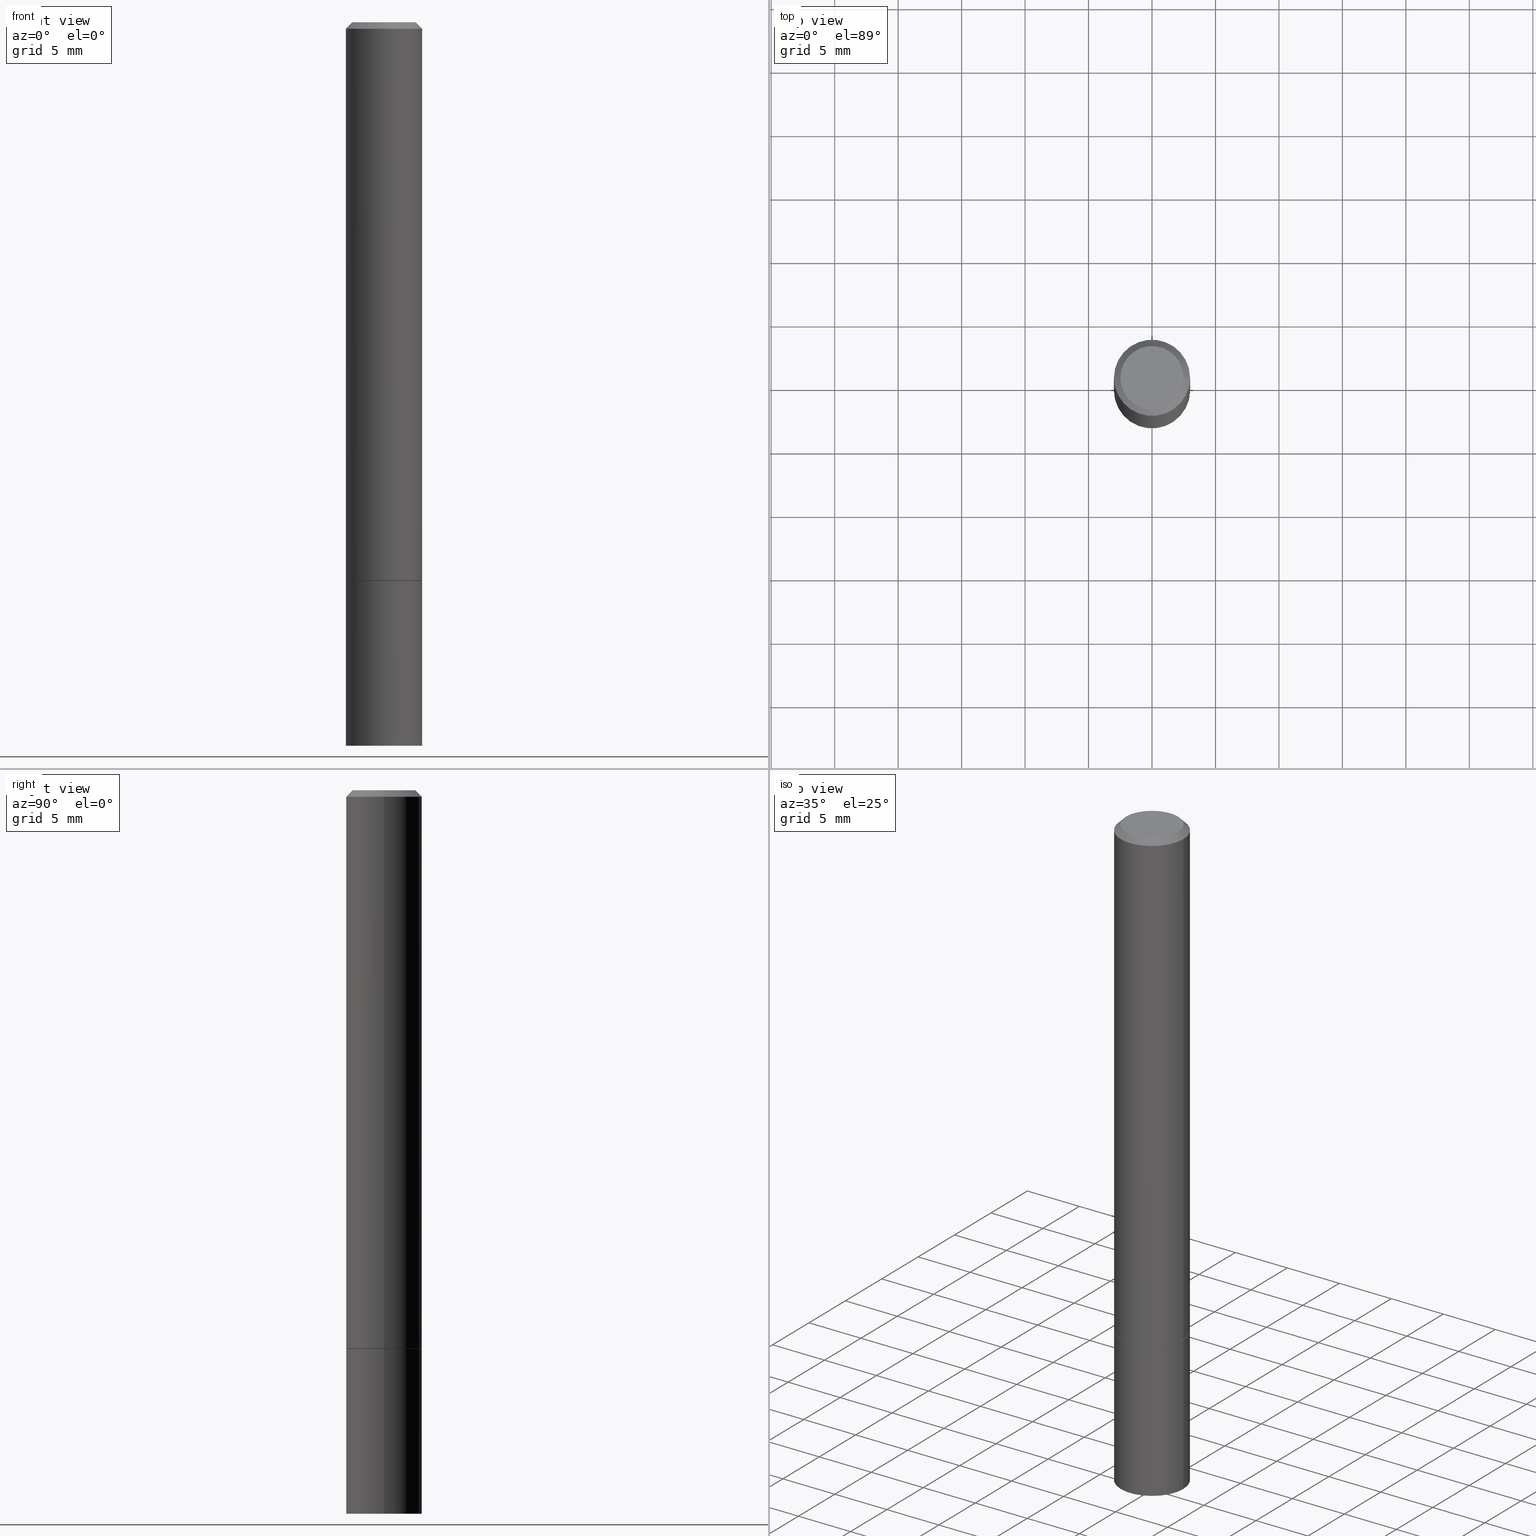
[diagram: canonical four-view strip — front | top / right | iso, engineering-drawing reading convention]
A machine part, canonical four-view strip (front | top / right | iso — engineering-drawing reading convention). The complete STEP part file that produces these views, byte-faithful:
ISO-10303-21;
HEADER;
FILE_DESCRIPTION (( 'STEP AP203' ),
    '1' );
FILE_NAME ('44715.STEP',
    '2024-02-28T07:43:08',
    ( '' ),
    ( '' ),
    'SwSTEP 2.0',
    'SolidWorks 2023',
    '' );
FILE_SCHEMA (( 'CONFIG_CONTROL_DESIGN' ));
ENDSEC;

DATA;
#1 = CARTESIAN_POINT ( 'NONE',  ( -0.1180999999999999966, 8.391509709326782957E-16, -5.809262341591043784E-30 ) ) ;
#2 = EDGE_CURVE ( 'NONE', #63, #155, #293, .T. ) ;
#3 = LOCAL_TIME ( 2, 43, 8.000000000000000000, #323 ) ;
#4 = EDGE_LOOP ( 'NONE', ( #19, #348, #112, #34 ) ) ;
#5 = ORIENTED_EDGE ( 'NONE', *, *, #261, .T. ) ;
#6 = ORIENTED_EDGE ( 'NONE', *, *, #86, .F. ) ;
#7 = ORIENTED_EDGE ( 'NONE', *, *, #187, .F. ) ;
#8 = ADVANCED_FACE ( 'NONE', ( #129 ), #241, .F. ) ;
#9 = EDGE_LOOP ( 'NONE', ( #144, #229 ) ) ;
#10 = EDGE_CURVE ( 'NONE', #202, #342, #251, .T. ) ;
#11 = APPROVAL_DATE_TIME ( #266, #41 ) ;
#12 = DIRECTION ( 'NONE',  ( 1.000000000000000000, -6.982962677686264344E-15, 0.000000000000000000 ) ) ;
#13 = AXIS2_PLACEMENT_3D ( 'NONE', #69, #350, #182 ) ;
#14 = DIRECTION ( 'NONE',  ( -0.7071067811866320607, 7.493145998870660238E-15, 0.7071067811864629737 ) ) ;
#15 = CARTESIAN_POINT ( 'NONE',  ( 8.350811314681758556E-46, -1.192274536304357760E-31, -3.414809992080329023E-17 ) ) ;
#16 = FACE_OUTER_BOUND ( 'NONE', #4, .T. ) ;
#17 = CARTESIAN_POINT ( 'NONE',  ( 0.000000000000000000, 0.000000000000000000, 0.000000000000000000 ) ) ;
#18 = CALENDAR_DATE ( 2024, 28, 2 ) ;
#19 = ORIENTED_EDGE ( 'NONE', *, *, #66, .T. ) ;
#20 = LENGTH_MEASURE_WITH_UNIT ( LENGTH_MEASURE( 0.02539999999999999897 ), #335 );
#21 = DIRECTION ( 'NONE',  ( 2.438088387897960049E-29, -3.491481338843145188E-15, -1.000000000000000000 ) ) ;
#22 = ADVANCED_FACE ( 'NONE', ( #81 ), #178, .T. ) ;
#23 = APPROVAL_STATUS ( 'not_yet_approved' ) ;
#24 = PERSON_AND_ORGANIZATION ( #56, #361 ) ;
#25 = VECTOR ( 'NONE', #269, 39.37007874015748143 ) ;
#26 = CARTESIAN_POINT ( 'NONE',  ( 0.1180999999999999966, -6.872981015512729341E-15, -1.732299999999999951 ) ) ;
#27 = CC_DESIGN_DATE_AND_TIME_ASSIGNMENT ( #291, #64, ( #58 ) ) ;
#28 = AXIS2_PLACEMENT_3D ( 'NONE', #173, #227, #347 ) ;
#29 = AXIS2_PLACEMENT_3D ( 'NONE', #268, #290, #40 ) ;
#30 = DIRECTION ( 'NONE',  ( -1.000000000000000000, 6.982962677686266711E-15, 0.000000000000000000 ) ) ;
#31 = ORIENTED_EDGE ( 'NONE', *, *, #363, .F. ) ;
#32 = CARTESIAN_POINT ( 'NONE',  ( 0.1180999999999999966, -8.659921164732650602E-15, -2.244099999999999984 ) ) ;
#33 = ORIENTED_EDGE ( 'NONE', *, *, #333, .T. ) ;
#34 = ORIENTED_EDGE ( 'NONE', *, *, #91, .F. ) ;
#35 = APPROVAL_STATUS ( 'not_yet_approved' ) ;
#36 = CIRCLE ( 'NONE', #246, 0.09809999999999990949 ) ;
#37 = CARTESIAN_POINT ( 'NONE',  ( 4.233840144148326789E-29, -6.044801641939137282E-15, -1.731299999999999839 ) ) ;
#38 = CC_DESIGN_SECURITY_CLASSIFICATION ( #345, ( #137 ) ) ;
#39 = ORIENTED_EDGE ( 'NONE', *, *, #118, .F. ) ;
#40 = DIRECTION ( 'NONE',  ( 1.000000000000000000, -6.982962677686266711E-15, 4.876176775795936353E-29 ) ) ;
#41 = APPROVAL ( #35, 'UNSPECIFIED' ) ;
#42 = PERSON_AND_ORGANIZATION ( #56, #361 ) ;
#43 = DIRECTION ( 'NONE',  ( -2.445468806185136597E-29, 3.491481338843145583E-15, 1.000000000000000000 ) ) ;
#44 = CARTESIAN_POINT ( 'NONE',  ( -0.1170999999999999958, -5.216247579702903100E-15, -1.732299999999999729 ) ) ;
#45 = MECHANICAL_CONTEXT ( 'NONE', #60, 'mechanical' ) ;
#46 = CYLINDRICAL_SURFACE ( 'NONE', #29, 0.1180999999999999966 ) ;
#47 = VECTOR ( 'NONE', #55, 39.37007874015748143 ) ;
#48 = PERSON_AND_ORGANIZATION_ROLE ( 'design_owner' ) ;
#49 = DIRECTION ( 'NONE',  ( -2.445468806185136597E-29, 3.491481338843145583E-15, 1.000000000000000000 ) ) ;
#50 = CARTESIAN_POINT ( 'NONE',  ( 5.487876547960064752E-29, -7.835233272497902340E-15, -2.244099999999999984 ) ) ;
#51 = CALENDAR_DATE ( 2024, 28, 2 ) ;
#52 = VERTEX_POINT ( 'NONE', #32 ) ;
#53 = CIRCLE ( 'NONE', #260, 0.1170999999999999958 ) ;
#54 = CARTESIAN_POINT ( 'NONE',  ( 8.246878922348027926E-16, 0.1180999999999921557, -2.244100000000000428 ) ) ;
#55 = DIRECTION ( 'NONE',  ( -2.445468806185136877E-29, 3.491481338843145188E-15, 1.000000000000000000 ) ) ;
#56 = PERSON ( 'UNSPECIFIED', 'UNSPECIFIED', 'UNSPECIFIED', ('UNSPECIFIED'), ('UNSPECIFIED'), ('UNSPECIFIED') ) ;
#57 = CARTESIAN_POINT ( 'NONE',  ( -0.1180999999999999273, 8.391509709326778027E-16, -5.809262341591040281E-30 ) ) ;
#58 = PRODUCT_DEFINITION ( 'UNKNOWN', '', #137, #226 ) ;
#59 = CARTESIAN_POINT ( 'NONE',  ( 4.236285612954512392E-29, -6.048293123277981078E-15, -1.732299999999999951 ) ) ;
#60 = APPLICATION_CONTEXT ( 'configuration controlled 3d designs of mechanical parts and assemblies' ) ;
#61 = EDGE_LOOP ( 'NONE', ( #318, #201, #84, #143 ) ) ;
#62 = AXIS2_PLACEMENT_3D ( 'NONE', #243, #98, #156 ) ;
#63 = VERTEX_POINT ( 'NONE', #311 ) ;
#64 = DATE_TIME_ROLE ( 'creation_date' ) ;
#65 = ORIENTED_EDGE ( 'NONE', *, *, #199, .F. ) ;
#66 = EDGE_CURVE ( 'NONE', #52, #176, #288, .T. ) ;
#67 = DIRECTION ( 'NONE',  ( 0.000000000000000000, 0.000000000000000000, 1.000000000000000000 ) ) ;
#68 = DIRECTION ( 'NONE',  ( 1.000000000000000000, -6.982962677686264344E-15, 0.000000000000000000 ) ) ;
#69 = CARTESIAN_POINT ( 'NONE',  ( 4.236285612954511832E-29, -6.048293123277980289E-15, -1.732299999999999729 ) ) ;
#70 = SECURITY_CLASSIFICATION_LEVEL ( 'unclassified' ) ;
#71 = CARTESIAN_POINT ( 'NONE',  ( 6.850286386810220606E-16, 0.09809999999999990949, -3.595883693009138711E-16 ) ) ;
#72 = CALENDAR_DATE ( 2024, 28, 2 ) ;
#73 = DIRECTION ( 'NONE',  ( 1.000000000000000000, -6.982962677686265922E-15, 4.877161320636771837E-29 ) ) ;
#74 = CIRCLE ( 'NONE', #28, 0.1180999999999999966 ) ;
#75 = AXIS2_PLACEMENT_3D ( 'NONE', #50, #165, #130 ) ;
#76 = DIRECTION ( 'NONE',  ( 1.000000000000000000, -6.982962677686266711E-15, 4.876176775795935793E-29 ) ) ;
#77 = CARTESIAN_POINT ( 'NONE',  ( 8.350811314681758556E-46, -1.192274536304357760E-31, -3.414809992080329023E-17 ) ) ;
#78 = SHAPE_DEFINITION_REPRESENTATION ( #301, #255 ) ;
#79 = LINE ( 'NONE', #366, #167 ) ;
#80 = CIRCLE ( 'NONE', #62, 0.1180999999999998301 ) ;
#81 = FACE_OUTER_BOUND ( 'NONE', #87, .T. ) ;
#82 = DIRECTION ( 'NONE',  ( -2.445468806185136597E-29, 3.491481338843145583E-15, 1.000000000000000000 ) ) ;
#83 = AXIS2_PLACEMENT_3D ( 'NONE', #183, #100, #179 ) ;
#84 = ORIENTED_EDGE ( 'NONE', *, *, #86, .T. ) ;
#85 = EDGE_CURVE ( 'NONE', #349, #149, #74, .T. ) ;
#86 = EDGE_CURVE ( 'NONE', #202, #332, #90, .T. ) ;
#87 = EDGE_LOOP ( 'NONE', ( #7, #232, #313, #6 ) ) ;
#88 = LOCAL_TIME ( 2, 43, 8.000000000000000000, #353 ) ;
#89 = ORIENTED_EDGE ( 'NONE', *, *, #299, .F. ) ;
#90 = LINE ( 'NONE', #344, #295 ) ;
#91 = EDGE_CURVE ( 'NONE', #52, #349, #154, .T. ) ;
#92 = VERTEX_POINT ( 'NONE', #314 ) ;
#93 = FACE_OUTER_BOUND ( 'NONE', #61, .T. ) ;
#94 = PERSON_AND_ORGANIZATION_ROLE ( 'creator' ) ;
#95 = CARTESIAN_POINT ( 'NONE',  ( 4.236285612954511832E-29, -6.048293123277980289E-15, -1.732299999999999729 ) ) ;
#96 = CARTESIAN_POINT ( 'NONE',  ( 4.236285612954512392E-29, -6.048293123277981078E-15, -1.732299999999999951 ) ) ;
#97 = PERSON_AND_ORGANIZATION ( #56, #361 ) ;
#98 = DIRECTION ( 'NONE',  ( -2.445468806185136597E-29, 3.491481338843145583E-15, 1.000000000000000000 ) ) ;
#99 = AXIS2_PLACEMENT_3D ( 'NONE', #96, #214, #358 ) ;
#100 = DIRECTION ( 'NONE',  ( -2.445468806185136597E-29, 3.491481338843145583E-15, 1.000000000000000000 ) ) ;
#101 = CC_DESIGN_PERSON_AND_ORGANIZATION_ASSIGNMENT ( #253, #274, ( #345 ) ) ;
#102 = CC_DESIGN_PERSON_AND_ORGANIZATION_ASSIGNMENT ( #120, #48, ( #338 ) ) ;
#103 = DIRECTION ( 'NONE',  ( 0.7071067811865459074, -7.319954787623249734E-15, -0.7071067811865491270 ) ) ;
#104 = DIRECTION ( 'NONE',  ( 1.000000000000000000, -6.982962677686266711E-15, 4.876176775795936353E-29 ) ) ;
#105 = AXIS2_PLACEMENT_3D ( 'NONE', #310, #67, #242 ) ;
#106 = DIRECTION ( 'NONE',  ( -1.000000000000000000, 6.982962677686265922E-15, -4.876176775795935793E-29 ) ) ;
#107 = CARTESIAN_POINT ( 'NONE',  ( 0.000000000000000000, 0.000000000000000000, 0.000000000000000000 ) ) ;
#108 = DIRECTION ( 'NONE',  ( 1.000000000000000000, -6.982962677686265922E-15, 4.877161320636771837E-29 ) ) ;
#109 = CLOSED_SHELL ( 'NONE', ( #285, #307, #324, #235 ) ) ;
#110 = AXIS2_PLACEMENT_3D ( 'NONE', #140, #364, #106 ) ;
#111 = ORIENTED_EDGE ( 'NONE', *, *, #208, .F. ) ;
#112 = ORIENTED_EDGE ( 'NONE', *, *, #85, .F. ) ;
#113 = DIRECTION ( 'NONE',  ( 1.000000000000000000, -6.982962677686265133E-15, 0.000000000000000000 ) ) ;
#114 = EDGE_LOOP ( 'NONE', ( #257, #224 ) ) ;
#115 =( NAMED_UNIT ( * ) SI_UNIT ( $, .STERADIAN. ) SOLID_ANGLE_UNIT ( ) );
#116 = AXIS2_PLACEMENT_3D ( 'NONE', #321, #213, #298 ) ;
#117 = VECTOR ( 'NONE', #168, 39.37007874015748143 ) ;
#118 = EDGE_CURVE ( 'NONE', #155, #92, #222, .T. ) ;
#119 = APPLICATION_CONTEXT ( 'configuration controlled 3d designs of mechanical parts and assemblies' ) ;
#120 = PERSON_AND_ORGANIZATION ( #56, #361 ) ;
#121 = DIRECTION ( 'NONE',  ( -2.445468806185136877E-29, 3.491481338843145188E-15, 1.000000000000000000 ) ) ;
#122 = ORIENTED_EDGE ( 'NONE', *, *, #118, .T. ) ;
#123 = FACE_OUTER_BOUND ( 'NONE', #312, .T. ) ;
#124 = ORIENTED_EDGE ( 'NONE', *, *, #308, .F. ) ;
#125 = PERSON_AND_ORGANIZATION ( #56, #361 ) ;
#126 = AXIS2_PLACEMENT_3D ( 'NONE', #17, #211, #76 ) ;
#127 = FACE_OUTER_BOUND ( 'NONE', #152, .T. ) ;
#128 = AXIS2_PLACEMENT_3D ( 'NONE', #54, #21, #254 ) ;
#129 = FACE_OUTER_BOUND ( 'NONE', #9, .T. ) ;
#130 = DIRECTION ( 'NONE',  ( 1.000000000000000000, -6.982962677686265133E-15, 0.000000000000000000 ) ) ;
#131 = APPLICATION_PROTOCOL_DEFINITION ( 'international standard', 'config_control_design', 1994, #119 ) ;
#132 = LINE ( 'NONE', #265, #25 ) ;
#133 = ORIENTED_EDGE ( 'NONE', *, *, #187, .T. ) ;
#134 = VERTEX_POINT ( 'NONE', #216 ) ;
#135 = DIRECTION ( 'NONE',  ( -2.445468806185136597E-29, 3.491481338843145583E-15, 1.000000000000000000 ) ) ;
#136 = PLANE ( 'NONE',  #351 ) ;
#137 = PRODUCT_DEFINITION_FORMATION_WITH_SPECIFIED_SOURCE ( 'ANY', '', #338, .NOT_KNOWN. ) ;
#138 =( CONVERSION_BASED_UNIT ( 'INCH', #20 ) LENGTH_UNIT ( ) NAMED_UNIT ( #207 ) );
#139 = LINE ( 'NONE', #1, #47 ) ;
#140 = CARTESIAN_POINT ( 'NONE',  ( 8.246878922347902694E-16, 0.1180999999999939598, -1.732300000000000617 ) ) ;
#141 = CIRCLE ( 'NONE', #328, 0.1170999999999999958 ) ;
#142 = CIRCLE ( 'NONE', #279, 0.1180999999999998301 ) ;
#143 = ORIENTED_EDGE ( 'NONE', *, *, #248, .T. ) ;
#144 = ORIENTED_EDGE ( 'NONE', *, *, #210, .F. ) ;
#145 = ADVANCED_FACE ( 'NONE', ( #325 ), #331, .T. ) ;
#146 = DIRECTION ( 'NONE',  ( -2.445468806185136597E-29, 3.491481338843145583E-15, 1.000000000000000000 ) ) ;
#147 = AXIS2_PLACEMENT_3D ( 'NONE', #150, #148, #113 ) ;
#148 = DIRECTION ( 'NONE',  ( -2.445468806185136597E-29, 3.491481338843145583E-15, 1.000000000000000000 ) ) ;
#149 = VERTEX_POINT ( 'NONE', #190 ) ;
#150 = CARTESIAN_POINT ( 'NONE',  ( 5.487876547960064752E-29, -7.835233272497902340E-15, -2.244099999999999984 ) ) ;
#151 = ORIENTED_EDGE ( 'NONE', *, *, #333, .F. ) ;
#152 = EDGE_LOOP ( 'NONE', ( #234, #133 ) ) ;
#153 = CIRCLE ( 'NONE', #303, 0.1181000000000000383 ) ;
#154 = LINE ( 'NONE', #204, #283 ) ;
#155 = VERTEX_POINT ( 'NONE', #267 ) ;
#156 = DIRECTION ( 'NONE',  ( 1.000000000000000000, -6.982962677686266711E-15, 0.000000000000000000 ) ) ;
#157 = APPROVAL_ROLE ( '' ) ;
#158 = DIRECTION ( 'NONE',  ( -2.445468806185136597E-29, 3.491481338843145583E-15, 1.000000000000000000 ) ) ;
#159 = ADVANCED_FACE ( 'NONE', ( #123 ), #171, .T. ) ;
#160 = PERSON_AND_ORGANIZATION_ROLE ( 'design_supplier' ) ;
#161 = DIRECTION ( 'NONE',  ( -2.445468806185136597E-29, 3.491481338843145583E-15, 1.000000000000000000 ) ) ;
#162 = AXIS2_PLACEMENT_3D ( 'NONE', #107, #217, #104 ) ;
#163 = DIRECTION ( 'NONE',  ( 1.000000000000000000, -6.982962677686264344E-15, 0.000000000000000000 ) ) ;
#164 = ADVANCED_FACE ( 'NONE', ( #93 ), #219, .T. ) ;
#165 = DIRECTION ( 'NONE',  ( -2.445468806185136597E-29, 3.491481338843145583E-15, 1.000000000000000000 ) ) ;
#166 = CLOSED_SHELL ( 'NONE', ( #249, #233, #22, #164, #145, #159, #8, #218 ) ) ;
#167 = VECTOR ( 'NONE', #103, 39.37007874015748143 ) ;
#168 = DIRECTION ( 'NONE',  ( -2.445468806185136877E-29, 3.491481338843145188E-15, 1.000000000000000000 ) ) ;
#169 = UNCERTAINTY_MEASURE_WITH_UNIT (LENGTH_MEASURE( 1.000000000000000082E-05 ), #138, 'distance_accuracy_value', 'NONE');
#170 = FACE_OUTER_BOUND ( 'NONE', #114, .T. ) ;
#171 = CONICAL_SURFACE ( 'NONE', #13, 0.1170999999999999958, 0.7853981633975678500 ) ;
#172 = EDGE_CURVE ( 'NONE', #63, #134, #141, .T. ) ;
#173 = CARTESIAN_POINT ( 'NONE',  ( 4.236285612954512392E-29, -6.048293123277981078E-15, -1.732299999999999951 ) ) ;
#174 = ORIENTED_EDGE ( 'NONE', *, *, #2, .F. ) ;
#175 =( GEOMETRIC_REPRESENTATION_CONTEXT ( 3 ) GLOBAL_UNCERTAINTY_ASSIGNED_CONTEXT ( ( #169 ) ) GLOBAL_UNIT_ASSIGNED_CONTEXT ( ( #138, #200, #115 ) ) REPRESENTATION_CONTEXT ( 'NONE', 'WORKASPACE' ) );
#176 = VERTEX_POINT ( 'NONE', #327 ) ;
#177 = ORIENTED_EDGE ( 'NONE', *, *, #2, .T. ) ;
#178 = CONICAL_SURFACE ( 'NONE', #278, 0.1180999999999998301, 0.7853981633974460586 ) ;
#179 = DIRECTION ( 'NONE',  ( 1.000000000000000000, -6.982962677686266711E-15, 4.876176775795935793E-29 ) ) ;
#180 = EDGE_LOOP ( 'NONE', ( #322, #65 ) ) ;
#181 = APPROVAL ( #326, 'UNSPECIFIED' ) ;
#182 = DIRECTION ( 'NONE',  ( 1.000000000000000000, -6.982962677686264344E-15, 0.000000000000000000 ) ) ;
#183 = CARTESIAN_POINT ( 'NONE',  ( 0.000000000000000000, 0.000000000000000000, 0.000000000000000000 ) ) ;
#184 = LOCAL_TIME ( 2, 43, 8.000000000000000000, #365 ) ;
#185 = CARTESIAN_POINT ( 'NONE',  ( 4.236285612954511832E-29, -6.048293123277980289E-15, -1.732299999999999729 ) ) ;
#186 = CC_DESIGN_APPROVAL ( #41, ( #137 ) ) ;
#187 = EDGE_CURVE ( 'NONE', #342, #202, #36, .T. ) ;
#188 = APPROVAL_DATE_TIME ( #220, #340 ) ;
#189 = EDGE_LOOP ( 'NONE', ( #124, #306, #205, #31 ) ) ;
#190 = CARTESIAN_POINT ( 'NONE',  ( -0.1180999999999999966, -6.102612226955263117E-15, -1.732299999999999951 ) ) ;
#191 = DIRECTION ( 'NONE',  ( -2.445468806185136597E-29, 3.491481338843145583E-15, 1.000000000000000000 ) ) ;
#192 = DIRECTION ( 'NONE',  ( 1.000000000000000000, -6.982962677686265133E-15, 0.000000000000000000 ) ) ;
#193 = DIRECTION ( 'NONE',  ( 0.7071067811866320607, -2.468850131083142557E-15, 0.7071067811864629737 ) ) ;
#194 = CIRCLE ( 'NONE', #252, 0.1180999999999999966 ) ;
#195 = LINE ( 'NONE', #250, #284 ) ;
#196 = CARTESIAN_POINT ( 'NONE',  ( 4.890937612370284544E-31, -6.982962677686307633E-17, -0.02000000000000004552 ) ) ;
#197 = FACE_OUTER_BOUND ( 'NONE', #180, .T. ) ;
#198 = CC_DESIGN_APPROVAL ( #340, ( #345 ) ) ;
#199 = EDGE_CURVE ( 'NONE', #176, #52, #223, .T. ) ;
#200 =( NAMED_UNIT ( * ) PLANE_ANGLE_UNIT ( ) SI_UNIT ( $, .RADIAN. ) );
#201 = ORIENTED_EDGE ( 'NONE', *, *, #10, .F. ) ;
#202 = VERTEX_POINT ( 'NONE', #297 ) ;
#203 = APPROVAL_PERSON_ORGANIZATION ( #264, #181, #316 ) ;
#204 = CARTESIAN_POINT ( 'NONE',  ( 0.1180999999999999966, -8.246878922347480654E-16, 5.758764772215000440E-30 ) ) ;
#205 = ORIENTED_EDGE ( 'NONE', *, *, #91, .T. ) ;
#206 = EDGE_LOOP ( 'NONE', ( #225, #33, #89, #339 ) ) ;
#207 = DIMENSIONAL_EXPONENTS ( 1.000000000000000000, 0.000000000000000000, 0.000000000000000000, 0.000000000000000000, 0.000000000000000000, 0.000000000000000000, 0.000000000000000000 ) ;
#208 = EDGE_CURVE ( 'NONE', #92, #155, #153, .T. ) ;
#209 = PERSON_AND_ORGANIZATION_ROLE ( 'creator' ) ;
#210 = EDGE_CURVE ( 'NONE', #134, #63, #53, .T. ) ;
#211 = DIRECTION ( 'NONE',  ( -2.445468806185136597E-29, 3.491481338843145583E-15, 1.000000000000000000 ) ) ;
#212 = PERSON_AND_ORGANIZATION ( #56, #361 ) ;
#213 = DIRECTION ( 'NONE',  ( 2.445468806185136597E-29, -3.491481338843145583E-15, -1.000000000000000000 ) ) ;
#214 = DIRECTION ( 'NONE',  ( -2.438088387897960049E-29, 3.491481338843145188E-15, 1.000000000000000000 ) ) ;
#215 = FACE_OUTER_BOUND ( 'NONE', #343, .T. ) ;
#216 = CARTESIAN_POINT ( 'NONE',  ( 0.1170999999999999958, -6.865998052835041749E-15, -1.732299999999999729 ) ) ;
#217 = DIRECTION ( 'NONE',  ( -2.445468806185136597E-29, 3.491481338843145583E-15, 1.000000000000000000 ) ) ;
#218 = ADVANCED_FACE ( 'NONE', ( #127 ), #136, .F. ) ;
#219 = CONICAL_SURFACE ( 'NONE', #116, 0.1180999999999998301, 0.7853981633974460586 ) ;
#220 = DATE_AND_TIME ( #18, #330 ) ;
#221 = CARTESIAN_POINT ( 'NONE',  ( -0.1180999999999998301, 7.548582654578837811E-16, -0.02000000000000004552 ) ) ;
#222 = CIRCLE ( 'NONE', #228, 0.1181000000000000383 ) ;
#223 = CIRCLE ( 'NONE', #75, 0.1180999999999999966 ) ;
#224 = ORIENTED_EDGE ( 'NONE', *, *, #363, .T. ) ;
#225 = ORIENTED_EDGE ( 'NONE', *, *, #208, .T. ) ;
#226 = DESIGN_CONTEXT ( 'detailed design', #119, 'design' ) ;
#227 = DIRECTION ( 'NONE',  ( -2.445468806185136597E-29, 3.491481338843145583E-15, 1.000000000000000000 ) ) ;
#228 = AXIS2_PLACEMENT_3D ( 'NONE', #37, #146, #317 ) ;
#229 = ORIENTED_EDGE ( 'NONE', *, *, #172, .F. ) ;
#230 = APPROVAL_PERSON_ORGANIZATION ( #24, #340, #334 ) ;
#231 = APPLICATION_PROTOCOL_DEFINITION ( 'international standard', 'config_control_design', 1994, #60 ) ;
#232 = ORIENTED_EDGE ( 'NONE', *, *, #352, .T. ) ;
#233 = ADVANCED_FACE ( 'NONE', ( #354 ), #240, .T. ) ;
#234 = ORIENTED_EDGE ( 'NONE', *, *, #10, .T. ) ;
#235 = ADVANCED_FACE ( 'NONE', ( #294 ), #46, .T. ) ;
#236 = CALENDAR_DATE ( 2024, 28, 2 ) ;
#237 = DIRECTION ( 'NONE',  ( -2.445468806185136597E-29, 3.491481338843145583E-15, 1.000000000000000000 ) ) ;
#238 = DATE_AND_TIME ( #236, #88 ) ;
#239 = AXIS2_PLACEMENT_3D ( 'NONE', #185, #49, #163 ) ;
#240 = CYLINDRICAL_SURFACE ( 'NONE', #83, 0.1180999999999999273 ) ;
#241 = PLANE ( 'NONE',  #99 ) ;
#242 = DIRECTION ( 'NONE',  ( 1.000000000000000000, 0.000000000000000000, 0.000000000000000000 ) ) ;
#243 = CARTESIAN_POINT ( 'NONE',  ( 4.890937612370284544E-31, -6.982962677686307633E-17, -0.02000000000000004552 ) ) ;
#244 = COORDINATED_UNIVERSAL_TIME_OFFSET ( 5, 0, .BEHIND. ) ;
#245 = CYLINDRICAL_SURFACE ( 'NONE', #162, 0.1180999999999999966 ) ;
#246 = AXIS2_PLACEMENT_3D ( 'NONE', #15, #158, #73 ) ;
#247 = DIRECTION ( 'NONE',  ( 2.438088387897960049E-29, -3.491481338843145188E-15, -1.000000000000000000 ) ) ;
#248 = EDGE_CURVE ( 'NONE', #332, #286, #80, .T. ) ;
#249 = ADVANCED_FACE ( 'NONE', ( #215 ), #272, .T. ) ;
#250 = CARTESIAN_POINT ( 'NONE',  ( 0.1170999999999999958, -6.865998052835041749E-15, -1.732299999999999729 ) ) ;
#251 = CIRCLE ( 'NONE', #359, 0.09809999999999990949 ) ;
#252 = AXIS2_PLACEMENT_3D ( 'NONE', #59, #135, #192 ) ;
#253 = PERSON_AND_ORGANIZATION ( #56, #361 ) ;
#254 = DIRECTION ( 'NONE',  ( -1.000000000000000000, 6.982962677686265922E-15, -4.876176775795935793E-29 ) ) ;
#255 = ADVANCED_BREP_SHAPE_REPRESENTATION ( '44715', ( #258, #256, #105 ), #175 ) ;
#256 = MANIFOLD_SOLID_BREP ( 'Body-Move/Copy2[2]', #166 ) ;
#257 = ORIENTED_EDGE ( 'NONE', *, *, #85, .T. ) ;
#258 = MANIFOLD_SOLID_BREP ( 'Body-Move/Copy2[1]', #109 ) ;
#259 = ORIENTED_EDGE ( 'NONE', *, *, #248, .F. ) ;
#260 = AXIS2_PLACEMENT_3D ( 'NONE', #292, #43, #12 ) ;
#261 = EDGE_CURVE ( 'NONE', #92, #286, #132, .T. ) ;
#262 = DIRECTION ( 'NONE',  ( -0.7071067811865459074, 2.468850131082240100E-15, -0.7071067811865491270 ) ) ;
#263 = ORIENTED_EDGE ( 'NONE', *, *, #172, .T. ) ;
#264 = PERSON_AND_ORGANIZATION ( #56, #361 ) ;
#265 = CARTESIAN_POINT ( 'NONE',  ( 0.1180999999999999273, -8.246878922347475723E-16, 5.758764772214996937E-30 ) ) ;
#266 = DATE_AND_TIME ( #72, #3 ) ;
#267 = CARTESIAN_POINT ( 'NONE',  ( -0.1181000000000000383, -2.218164663425319332E-15, -1.731299999999999839 ) ) ;
#268 = CARTESIAN_POINT ( 'NONE',  ( 0.000000000000000000, 0.000000000000000000, 0.000000000000000000 ) ) ;
#269 = DIRECTION ( 'NONE',  ( -2.445468806185136877E-29, 3.491481338843145188E-15, 1.000000000000000000 ) ) ;
#270 = CARTESIAN_POINT ( 'NONE',  ( 4.233840144148326789E-29, -6.044801641939137282E-15, -1.731299999999999839 ) ) ;
#271 = CARTESIAN_POINT ( 'NONE',  ( 0.09809999999999990949, -7.765346469475332653E-16, -3.414809992079818112E-17 ) ) ;
#272 = CONICAL_SURFACE ( 'NONE', #239, 0.1170999999999999958, 0.7853981633975678500 ) ;
#273 = CC_DESIGN_PERSON_AND_ORGANIZATION_ASSIGNMENT ( #212, #160, ( #137 ) ) ;
#274 = PERSON_AND_ORGANIZATION_ROLE ( 'classification_officer' ) ;
#275 = CARTESIAN_POINT ( 'NONE',  ( 0.1180999999999998301, -8.800544403136797528E-16, -0.02000000000000004552 ) ) ;
#276 = PRODUCT_RELATED_PRODUCT_CATEGORY ( 'detail', '', ( #338 ) ) ;
#277 = PLANE ( 'NONE',  #110 ) ;
#278 = AXIS2_PLACEMENT_3D ( 'NONE', #196, #282, #30 ) ;
#279 = AXIS2_PLACEMENT_3D ( 'NONE', #337, #82, #280 ) ;
#280 = DIRECTION ( 'NONE',  ( 1.000000000000000000, -6.982962677686266711E-15, 0.000000000000000000 ) ) ;
#281 = CC_DESIGN_DATE_AND_TIME_ASSIGNMENT ( #336, #329, ( #345 ) ) ;
#282 = DIRECTION ( 'NONE',  ( 2.445468806185136597E-29, -3.491481338843145583E-15, -1.000000000000000000 ) ) ;
#283 = VECTOR ( 'NONE', #121, 39.37007874015748143 ) ;
#284 = VECTOR ( 'NONE', #193, 39.37007874015748143 ) ;
#285 = ADVANCED_FACE ( 'NONE', ( #16 ), #245, .T. ) ;
#286 = VERTEX_POINT ( 'NONE', #275 ) ;
#287 = ORIENTED_EDGE ( 'NONE', *, *, #300, .T. ) ;
#288 = CIRCLE ( 'NONE', #147, 0.1180999999999999966 ) ;
#289 = ORIENTED_EDGE ( 'NONE', *, *, #210, .T. ) ;
#290 = DIRECTION ( 'NONE',  ( -2.445468806185136597E-29, 3.491481338843145583E-15, 1.000000000000000000 ) ) ;
#291 = DATE_AND_TIME ( #320, #296 ) ;
#292 = CARTESIAN_POINT ( 'NONE',  ( 4.236285612954511832E-29, -6.048293123277980289E-15, -1.732299999999999729 ) ) ;
#293 = LINE ( 'NONE', #44, #302 ) ;
#294 = FACE_OUTER_BOUND ( 'NONE', #189, .T. ) ;
#295 = VECTOR ( 'NONE', #262, 39.37007874015748143 ) ;
#296 = LOCAL_TIME ( 2, 43, 8.000000000000000000, #244 ) ;
#297 = CARTESIAN_POINT ( 'NONE',  ( -0.09809999999999990949, 7.199434520694528223E-16, -3.414809992080820212E-17 ) ) ;
#298 = DIRECTION ( 'NONE',  ( -1.000000000000000000, 6.982962677686266711E-15, 0.000000000000000000 ) ) ;
#299 = EDGE_CURVE ( 'NONE', #286, #332, #142, .T. ) ;
#300 = EDGE_CURVE ( 'NONE', #134, #92, #195, .T. ) ;
#301 = PRODUCT_DEFINITION_SHAPE ( 'NONE', 'NONE',  #58 ) ;
#302 = VECTOR ( 'NONE', #14, 39.37007874015748143 ) ;
#303 = AXIS2_PLACEMENT_3D ( 'NONE', #270, #161, #356 ) ;
#304 = PLANE ( 'NONE',  #128 ) ;
#305 = LINE ( 'NONE', #57, #117 ) ;
#306 = ORIENTED_EDGE ( 'NONE', *, *, #199, .T. ) ;
#307 = ADVANCED_FACE ( 'NONE', ( #197 ), #304, .T. ) ;
#308 = EDGE_CURVE ( 'NONE', #176, #149, #139, .T. ) ;
#309 = EDGE_LOOP ( 'NONE', ( #151, #122, #5, #259 ) ) ;
#310 = CARTESIAN_POINT ( 'NONE',  ( 0.000000000000000000, 0.000000000000000000, 0.000000000000000000 ) ) ;
#311 = CARTESIAN_POINT ( 'NONE',  ( -0.1170999999999999958, -5.210949125354681487E-15, -1.732299999999999729 ) ) ;
#312 = EDGE_LOOP ( 'NONE', ( #174, #263, #287, #39 ) ) ;
#313 = ORIENTED_EDGE ( 'NONE', *, *, #299, .T. ) ;
#314 = CARTESIAN_POINT ( 'NONE',  ( 0.1181000000000000383, -6.869489534173886334E-15, -1.731299999999999839 ) ) ;
#315 = ORIENTED_EDGE ( 'NONE', *, *, #300, .F. ) ;
#316 = APPROVAL_ROLE ( '' ) ;
#317 = DIRECTION ( 'NONE',  ( 1.000000000000000000, -6.982962677686270655E-15, 0.000000000000000000 ) ) ;
#318 = ORIENTED_EDGE ( 'NONE', *, *, #352, .F. ) ;
#319 = CC_DESIGN_APPROVAL ( #181, ( #58 ) ) ;
#320 = CALENDAR_DATE ( 2024, 28, 2 ) ;
#321 = CARTESIAN_POINT ( 'NONE',  ( 4.890937612370284544E-31, -6.982962677686307633E-17, -0.02000000000000004552 ) ) ;
#322 = ORIENTED_EDGE ( 'NONE', *, *, #66, .F. ) ;
#323 = COORDINATED_UNIVERSAL_TIME_OFFSET ( 5, 0, .BEHIND. ) ;
#324 = ADVANCED_FACE ( 'NONE', ( #170 ), #277, .F. ) ;
#325 = FACE_OUTER_BOUND ( 'NONE', #309, .T. ) ;
#326 = APPROVAL_STATUS ( 'not_yet_approved' ) ;
#327 = CARTESIAN_POINT ( 'NONE',  ( -0.1180999999999999966, -6.102612226955263117E-15, -2.244099999999999984 ) ) ;
#328 = AXIS2_PLACEMENT_3D ( 'NONE', #95, #237, #68 ) ;
#329 = DATE_TIME_ROLE ( 'classification_date' ) ;
#330 = LOCAL_TIME ( 2, 43, 8.000000000000000000, #360 ) ;
#331 = CYLINDRICAL_SURFACE ( 'NONE', #126, 0.1180999999999999273 ) ;
#332 = VERTEX_POINT ( 'NONE', #221 ) ;
#333 = EDGE_CURVE ( 'NONE', #155, #332, #305, .T. ) ;
#334 = APPROVAL_ROLE ( '' ) ;
#335 =( LENGTH_UNIT ( ) NAMED_UNIT ( * ) SI_UNIT ( $, .METRE. ) );
#336 = DATE_AND_TIME ( #51, #184 ) ;
#337 = CARTESIAN_POINT ( 'NONE',  ( 4.890937612370284544E-31, -6.982962677686307633E-17, -0.02000000000000004552 ) ) ;
#338 = PRODUCT ( '44715', '44715', '', ( #45 ) ) ;
#339 = ORIENTED_EDGE ( 'NONE', *, *, #261, .F. ) ;
#340 = APPROVAL ( #23, 'UNSPECIFIED' ) ;
#341 = CC_DESIGN_PERSON_AND_ORGANIZATION_ASSIGNMENT ( #125, #94, ( #137 ) ) ;
#342 = VERTEX_POINT ( 'NONE', #271 ) ;
#343 = EDGE_LOOP ( 'NONE', ( #289, #177, #111, #315 ) ) ;
#344 = CARTESIAN_POINT ( 'NONE',  ( -0.1180999999999998301, 7.548582654578837811E-16, -0.02000000000000004552 ) ) ;
#345 = SECURITY_CLASSIFICATION ( '', '', #70 ) ;
#346 = APPROVAL_PERSON_ORGANIZATION ( #42, #41, #157 ) ;
#347 = DIRECTION ( 'NONE',  ( 1.000000000000000000, -6.982962677686265133E-15, 0.000000000000000000 ) ) ;
#348 = ORIENTED_EDGE ( 'NONE', *, *, #308, .T. ) ;
#349 = VERTEX_POINT ( 'NONE', #26 ) ;
#350 = DIRECTION ( 'NONE',  ( -2.445468806185136597E-29, 3.491481338843145583E-15, 1.000000000000000000 ) ) ;
#351 = AXIS2_PLACEMENT_3D ( 'NONE', #71, #247, #362 ) ;
#352 = EDGE_CURVE ( 'NONE', #342, #286, #79, .T. ) ;
#353 = COORDINATED_UNIVERSAL_TIME_OFFSET ( 5, 0, .BEHIND. ) ;
#354 = FACE_OUTER_BOUND ( 'NONE', #206, .T. ) ;
#355 = APPROVAL_DATE_TIME ( #238, #181 ) ;
#356 = DIRECTION ( 'NONE',  ( 1.000000000000000000, -6.982962677686270655E-15, 0.000000000000000000 ) ) ;
#357 = CC_DESIGN_PERSON_AND_ORGANIZATION_ASSIGNMENT ( #97, #209, ( #58 ) ) ;
#358 = DIRECTION ( 'NONE',  ( 1.000000000000000000, -6.982962677686265922E-15, 4.876176775795935793E-29 ) ) ;
#359 = AXIS2_PLACEMENT_3D ( 'NONE', #77, #191, #108 ) ;
#360 = COORDINATED_UNIVERSAL_TIME_OFFSET ( 5, 0, .BEHIND. ) ;
#361 = ORGANIZATION ( 'UNSPECIFIED', 'UNSPECIFIED', '' ) ;
#362 = DIRECTION ( 'NONE',  ( -1.000000000000000000, 6.982962677686265922E-15, -4.876176775795935793E-29 ) ) ;
#363 = EDGE_CURVE ( 'NONE', #149, #349, #194, .T. ) ;
#364 = DIRECTION ( 'NONE',  ( 2.438088387897960049E-29, -3.491481338843145188E-15, -1.000000000000000000 ) ) ;
#365 = COORDINATED_UNIVERSAL_TIME_OFFSET ( 5, 0, .BEHIND. ) ;
#366 = CARTESIAN_POINT ( 'NONE',  ( 0.1180999999999998301, -8.800544403136797528E-16, -0.02000000000000004552 ) ) ;
ENDSEC;
END-ISO-10303-21;
